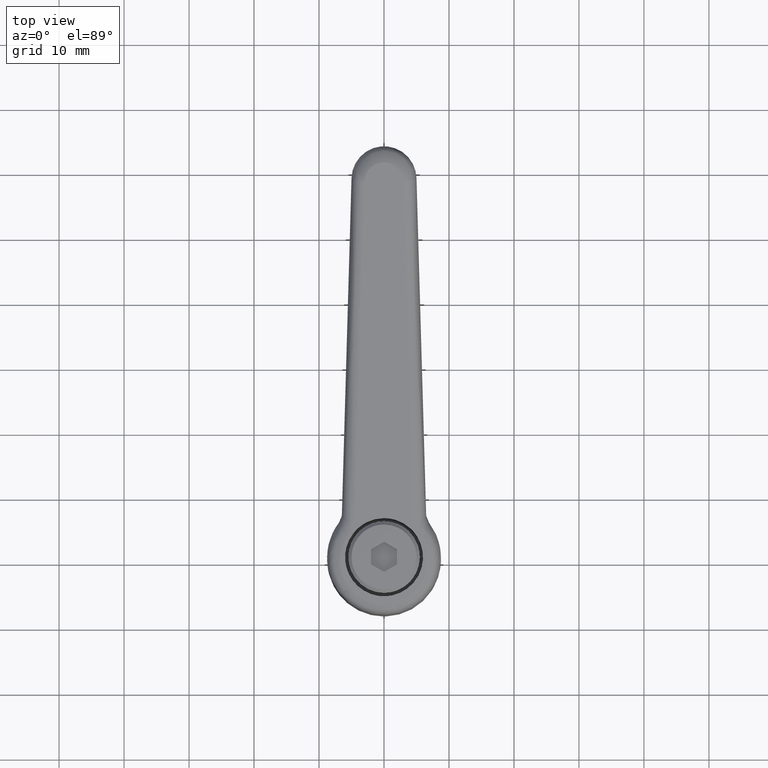
[diagram: clean part render]
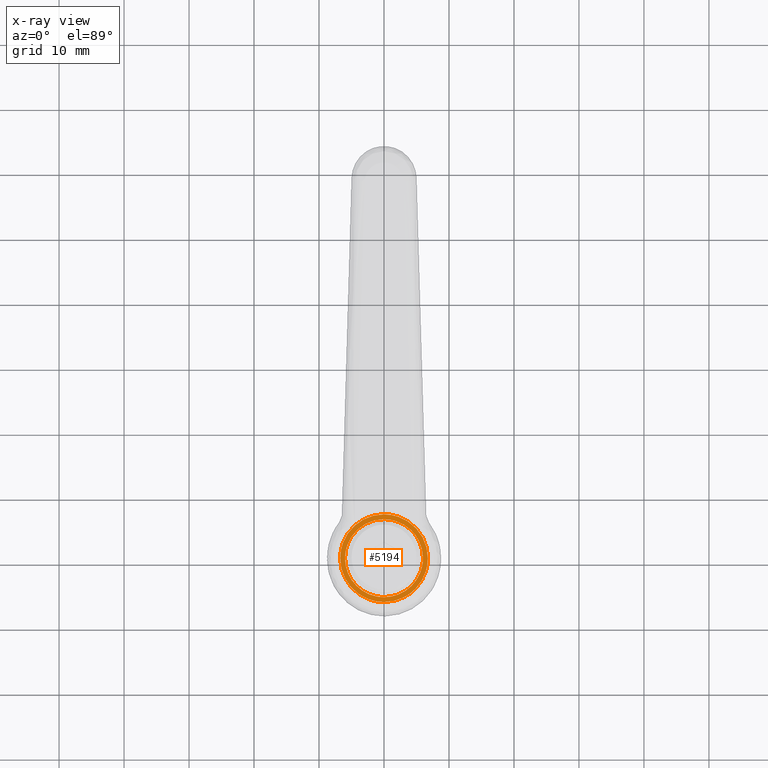
[diagram: x-ray — body ghosted, one internal face saturated and labeled with its STEP entity id]
A machine part, top view, then the same camera in x-ray: the body is ghosted and one INTERNAL B-rep face — a face not visible from any outside direction — is saturated and labeled: STEP entity #5194.
In plain terms, the highlighted face is a freeform B-spline surface patch.
Its self-contained STEP definition (entity closure, byte-faithful):
#1594=CARTESIAN_POINT('',(-6.750000000000000,0.0,20.0));
#1595=VERTEX_POINT('',#1594);
#1596=CARTESIAN_POINT('',(-4.707665820023351,-4.837393887988043,19.999999999999769));
#1597=VERTEX_POINT('',#1596);
#1598=CARTESIAN_POINT('',(-6.750000000000000,0.0,20.0));
#1599=CARTESIAN_POINT('',(-6.750086390662900,-0.477528701971041,20.000000000000028));
#1600=CARTESIAN_POINT('',(-6.663169365717394,-1.292087345393747,19.999999999999851));
#1601=CARTESIAN_POINT('',(-6.328114091911209,-2.426717338787162,19.999999999999911));
#1602=CARTESIAN_POINT('',(-5.760171167212270,-3.623352699578233,19.999999999999819));
#1603=CARTESIAN_POINT('',(-5.150707076095486,-4.406540491042587,19.999999999999819));
#1604=CARTESIAN_POINT('',(-4.707665820023351,-4.837393887988043,19.999999999999769));
#1605=B_SPLINE_CURVE_WITH_KNOTS('',3,(#1598,#1599,#1600,#1601,#1602,#1603,#1604),.UNSPECIFIED.,.F.,.U.,(4,1,1,1,4),(0.000000014046107,1.432571036829972,2.443809775522127,3.539287247505515,5.393206961415920),.UNSPECIFIED.);
#1606=EDGE_CURVE('',#1595,#1597,#1605,.T.);
#1671=CARTESIAN_POINT('',(4.560234069439749,-4.976622159798215,20.000000000001020));
#1672=VERTEX_POINT('',#1671);
#1678=CARTESIAN_POINT('',(6.750000000000000,0.0,20.0));
#1679=VERTEX_POINT('',#1678);
#1680=CARTESIAN_POINT('',(4.560234069439749,-4.976622159798215,20.000000000001020));
#1681=CARTESIAN_POINT('',(4.839606399105284,-4.720668696297840,20.000000000000970));
#1682=CARTESIAN_POINT('',(5.335227976562021,-4.183031608655925,20.000000000000870));
#1683=CARTESIAN_POINT('',(5.962844432490847,-3.231211396296245,20.000000000000700));
#1684=CARTESIAN_POINT('',(6.410737989250696,-2.213295516267105,20.000000000000451));
#1685=CARTESIAN_POINT('',(6.688487422473674,-1.107528633881775,20.000000000000231));
#1686=CARTESIAN_POINT('',(6.750030075511417,-0.378893528700279,20.000000000000082));
#1687=CARTESIAN_POINT('',(6.750000000000000,0.0,20.0));
#1688=B_SPLINE_CURVE_WITH_KNOTS('',3,(#1680,#1681,#1682,#1683,#1684,#1685,#1686,#1687),.UNSPECIFIED.,.F.,.U.,(4,1,1,1,1,4),(0.000000012906852,1.136685204855668,2.185947262679422,3.410053926547014,4.459315781137755,5.596001092864931),.UNSPECIFIED.);
#1689=EDGE_CURVE('',#1672,#1679,#1688,.T.);
#1691=CARTESIAN_POINT('',(-0.000000859410744,6.749999999999945,20.0));
#1692=VERTEX_POINT('',#1691);
#1693=CARTESIAN_POINT('',(6.750000000000000,0.0,20.0));
#1694=CARTESIAN_POINT('',(6.750000599956806,0.303719599288953,19.999999999999989));
#1695=CARTESIAN_POINT('',(6.697774816066874,1.076851167148476,20.000000000000021));
#1696=CARTESIAN_POINT('',(6.382044546012630,2.371504471582557,20.000000000000011));
#1697=CARTESIAN_POINT('',(5.706570773123779,3.713386726689055,19.999999999999918));
#1698=CARTESIAN_POINT('',(4.819316222056413,4.780922744641327,20.000000000000099));
#1699=CARTESIAN_POINT('',(3.775440927585680,5.648434628955928,19.999999999999918));
#1700=CARTESIAN_POINT('',(2.578084883036020,6.297965495118131,20.000000000000039));
#1701=CARTESIAN_POINT('',(1.242523131419660,6.676313830642905,19.999999999999989));
#1702=CARTESIAN_POINT('',(0.386559360959357,6.750017798658464,20.000000000000021));
#1703=CARTESIAN_POINT('',(-0.000000859410744,6.749999999999945,20.0));
#1704=B_SPLINE_CURVE_WITH_KNOTS('',3,(#1693,#1694,#1695,#1696,#1697,#1698,#1699,#1700,#1701,#1702,#1703),.UNSPECIFIED.,.F.,.U.,(4,1,1,1,1,1,1,1,4),(0.000000054603358,0.911171058020097,2.319389311127884,3.976119505188041,5.384291109044759,6.461163638975438,8.035042639962818,9.443249713197075,10.602942218789391),.UNSPECIFIED.);
#1705=EDGE_CURVE('',#1679,#1692,#1704,.T.);
#1707=CARTESIAN_POINT('',(-0.000000859410744,6.749999999999945,20.0));
#1708=CARTESIAN_POINT('',(-0.662726507479431,6.750313739690538,20.000000000000011));
#1709=CARTESIAN_POINT('',(-1.518510687680812,6.622938896930343,20.000000000000028));
#1710=CARTESIAN_POINT('',(-2.718117670833373,6.201936839382194,19.999999999999961));
#1711=CARTESIAN_POINT('',(-3.532918899465068,5.785530128736920,19.999999999999940));
#1712=CARTESIAN_POINT('',(-4.470739667782990,5.098854142067317,20.000000000000149));
#1713=CARTESIAN_POINT('',(-5.362131427760712,4.185470049452402,19.999999999999851));
#1714=CARTESIAN_POINT('',(-6.054341460362989,3.077314363254256,20.000000000000131));
#1715=CARTESIAN_POINT('',(-6.602354582088979,1.656529922117640,19.999999999999929));
#1716=CARTESIAN_POINT('',(-6.750308066742994,0.662725960060322,20.000000000000071));
#1717=CARTESIAN_POINT('',(-6.750000000000000,0.0,20.0));
#1718=B_SPLINE_CURVE_WITH_KNOTS('',3,(#1707,#1708,#1709,#1710,#1711,#1712,#1713,#1714,#1715,#1716,#1717),.UNSPECIFIED.,.F.,.U.,(4,1,1,1,1,1,1,1,4),(0.000000054901006,1.988044966413110,2.567899688458144,3.810446219157967,4.721625328263571,6.046969241069500,7.620859843928216,8.614897722541816,10.602941250027129),.UNSPECIFIED.);
#1719=EDGE_CURVE('',#1692,#1595,#1718,.T.);
#1738=CARTESIAN_POINT('',(0.000000859410688,-6.749999999999945,20.0));
#1739=VERTEX_POINT('',#1738);
#1740=CARTESIAN_POINT('',(-4.707665820023351,-4.837393887988043,19.999999999999769));
#1741=CARTESIAN_POINT('',(-4.377133316945228,-5.159157739999656,19.999999999999801));
#1742=CARTESIAN_POINT('',(-3.842275651779610,-5.582143551968589,19.999999999999801));
#1743=CARTESIAN_POINT('',(-2.922102314762232,-6.107255630211933,19.999999999999890));
#1744=CARTESIAN_POINT('',(-2.165264972467285,-6.414733106123814,19.999999999999918));
#1745=CARTESIAN_POINT('',(-1.139595827039136,-6.680179462896150,19.999999999999812));
#1746=CARTESIAN_POINT('',(-0.461283005729352,-6.750066465347471,20.000000000000121));
#1747=CARTESIAN_POINT('',(0.000000859410688,-6.749999999999945,20.0));
#1748=B_SPLINE_CURVE_WITH_KNOTS('',3,(#1740,#1741,#1742,#1743,#1744,#1745,#1746,#1747),.UNSPECIFIED.,.F.,.U.,(4,1,1,1,1,4),(0.000000014802408,1.383837072062392,2.035055755692155,3.174679782523663,3.825898466138868,5.209735523407318),.UNSPECIFIED.);
#1749=EDGE_CURVE('',#1597,#1739,#1748,.T.);
#1751=CARTESIAN_POINT('',(0.000000859410688,-6.749999999999945,20.0));
#1752=CARTESIAN_POINT('',(0.391168022466558,-6.750035736223921,20.000000000000089));
#1753=CARTESIAN_POINT('',(1.095253823752522,-6.688618546620677,20.000000000000259));
#1754=CARTESIAN_POINT('',(2.033952924876333,-6.455520799811508,20.000000000000458));
#1755=CARTESIAN_POINT('',(2.910399435682856,-6.114706469578630,20.000000000000689));
#1756=CARTESIAN_POINT('',(3.755271136227227,-5.642148608683607,20.000000000000750));
#1757=CARTESIAN_POINT('',(4.310302381896475,-5.205667888573357,20.000000000001101));
#1758=CARTESIAN_POINT('',(4.560234069439749,-4.976622159798215,20.000000000001020));
#1759=B_SPLINE_CURVE_WITH_KNOTS('',3,(#1751,#1752,#1753,#1754,#1755,#1756,#1757,#1758),.UNSPECIFIED.,.F.,.U.,(4,1,1,1,1,4),(0.000000014766859,1.173501244266148,2.112306057225724,2.894634523593584,3.989908776320252,5.006940566065000),.UNSPECIFIED.);
#1760=EDGE_CURVE('',#1739,#1672,#1759,.T.);
#1815=CARTESIAN_POINT('',(0.000000914096678,-5.999999999999930,20.0));
#1816=VERTEX_POINT('',#1815);
#1817=CARTESIAN_POINT('',(4.299905996833539,-4.184592113894977,20.0));
#1818=VERTEX_POINT('',#1817);
#1819=CARTESIAN_POINT('',(0.000000914096678,-5.999999999999930,20.0));
#1820=CARTESIAN_POINT('',(0.524358224623213,-6.000173855678395,19.999999999999989));
#1821=CARTESIAN_POINT('',(1.348215949343070,-5.891266008882675,20.000000000000060));
#1822=CARTESIAN_POINT('',(2.364270380253929,-5.535131818393822,19.999999999999961));
#1823=CARTESIAN_POINT('',(3.321253489204239,-5.043791961105516,20.000000000000089));
#1824=CARTESIAN_POINT('',(3.934313388652013,-4.560478977163506,19.999999999999890));
#1825=CARTESIAN_POINT('',(4.299905996833539,-4.184592113894977,20.0));
#1826=B_SPLINE_CURVE_WITH_KNOTS('',3,(#1819,#1820,#1821,#1822,#1823,#1824,#1825),.UNSPECIFIED.,.F.,.U.,(4,1,1,1,4),(0.000000018968600,1.573019635213427,2.471876165616021,3.220941406599553,4.793961022840614),.UNSPECIFIED.);
#1827=EDGE_CURVE('',#1816,#1818,#1826,.T.);
#1829=CARTESIAN_POINT('',(-6.0,0.0,20.0));
#1830=VERTEX_POINT('',#1829);
#1831=CARTESIAN_POINT('',(-6.0,0.0,20.0));
#1832=CARTESIAN_POINT('',(-6.000275828688879,-0.613613974463418,20.000000000000011));
#1833=CARTESIAN_POINT('',(-5.832884498194198,-1.693387856326333,20.000000000000011));
#1834=CARTESIAN_POINT('',(-5.274404987018185,-2.932442656324553,20.0));
#1835=CARTESIAN_POINT('',(-4.656538549014261,-3.821159307301229,20.000000000000071));
#1836=CARTESIAN_POINT('',(-3.909207084518603,-4.606253597446091,19.999999999999851));
#1837=CARTESIAN_POINT('',(-2.975873061332636,-5.255056919689707,20.000000000000110));
#1838=CARTESIAN_POINT('',(-2.072998282267953,-5.648544365341371,20.0));
#1839=CARTESIAN_POINT('',(-1.128961664985509,-5.922339815579405,20.000000000000028));
#1840=CARTESIAN_POINT('',(-0.466338564269826,-6.000103598494607,19.999999999999979));
#1841=CARTESIAN_POINT('',(0.000000914096678,-5.999999999999930,20.0));
#1842=B_SPLINE_CURVE_WITH_KNOTS('',3,(#1831,#1832,#1833,#1834,#1835,#1836,#1837,#1838,#1839,#1840,#1841),.UNSPECIFIED.,.F.,.U.,(4,1,1,1,1,1,1,1,4),(0.000000067698906,1.840785932542810,3.239792306785292,4.049756111690768,5.080569469217930,6.479570162393193,7.436791589446305,8.025849190768057,9.424837612455836),.UNSPECIFIED.);
#1843=EDGE_CURVE('',#1830,#1816,#1842,.T.);
#1845=CARTESIAN_POINT('',(-0.000000914096605,5.999999999999931,20.0));
#1846=VERTEX_POINT('',#1845);
#1847=CARTESIAN_POINT('',(-0.000000914096605,5.999999999999931,20.0));
#1848=CARTESIAN_POINT('',(-0.466334761149129,6.000098392279675,20.000000000000011));
#1849=CARTESIAN_POINT('',(-1.300780031512712,5.902213547830920,19.999999999999972));
#1850=CARTESIAN_POINT('',(-2.491940964577466,5.500587361802218,20.000000000000039));
#1851=CARTESIAN_POINT('',(-3.518989882399044,4.910459544486908,19.999999999999918));
#1852=CARTESIAN_POINT('',(-4.350338721253145,4.175267855001076,20.000000000000210));
#1853=CARTESIAN_POINT('',(-5.057767481718837,3.291429880265358,19.999999999999591));
#1854=CARTESIAN_POINT('',(-5.511738498430055,2.442099336380191,20.000000000000320));
#1855=CARTESIAN_POINT('',(-5.896561925755443,1.300726484988467,19.999999999999709));
#1856=CARTESIAN_POINT('',(-6.000206761949779,0.539985262224863,19.999999999999719));
#1857=CARTESIAN_POINT('',(-6.0,0.0,20.0));
#1858=B_SPLINE_CURVE_WITH_KNOTS('',3,(#1847,#1848,#1849,#1850,#1851,#1852,#1853,#1854,#1855,#1856,#1857),.UNSPECIFIED.,.F.,.U.,(4,1,1,1,1,1,1,1,4),(0.000000068015876,1.398991795524771,2.503472515935433,3.755229330422151,4.933282455299461,5.816885796940975,7.142260087809101,7.804953529274568,9.424836582049434),.UNSPECIFIED.);
#1859=EDGE_CURVE('',#1846,#1830,#1858,.T.);
#1861=CARTESIAN_POINT('',(4.423663888944148,4.053541052684300,20.0));
#1862=VERTEX_POINT('',#1861);
#1863=CARTESIAN_POINT('',(4.423663888944148,4.053541052684300,20.0));
#1864=CARTESIAN_POINT('',(4.056234779077514,4.454810789344857,19.999999999999979));
#1865=CARTESIAN_POINT('',(3.432465663227703,4.972387887610418,20.000000000000050));
#1866=CARTESIAN_POINT('',(2.311358697660080,5.573632370755822,19.999999999999961));
#1867=CARTESIAN_POINT('',(1.243551072646473,5.916702553814775,20.000000000000110));
#1868=CARTESIAN_POINT('',(0.388605872120000,6.000037508301147,19.999999999999901));
#1869=CARTESIAN_POINT('',(-0.000000914096605,5.999999999999931,20.0));
#1870=B_SPLINE_CURVE_WITH_KNOTS('',3,(#1863,#1864,#1865,#1866,#1867,#1868,#1869),.UNSPECIFIED.,.F.,.U.,(4,1,1,1,4),(0.000000018735008,1.632171924051736,2.409398654990067,3.808391438971429,4.974224015977739),.UNSPECIFIED.);
#1871=EDGE_CURVE('',#1862,#1846,#1870,.T.);
#1936=CARTESIAN_POINT('',(6.0,0.0,20.0));
#1937=VERTEX_POINT('',#1936);
#1938=CARTESIAN_POINT('',(4.299905996833539,-4.184592113894977,20.0));
#1939=CARTESIAN_POINT('',(4.602754136875995,-3.873514554746282,19.999999999999989));
#1940=CARTESIAN_POINT('',(5.035829066987961,-3.319026018569437,20.000000000000011));
#1941=CARTESIAN_POINT('',(5.557604602239763,-2.337121749821315,20.000000000000050));
#1942=CARTESIAN_POINT('',(5.907978383016394,-1.278280357379907,19.999999999999879));
#1943=CARTESIAN_POINT('',(6.000074956764411,-0.434148003237727,20.000000000000039));
#1944=CARTESIAN_POINT('',(6.0,0.0,20.0));
#1945=B_SPLINE_CURVE_WITH_KNOTS('',3,(#1938,#1939,#1940,#1941,#1942,#1943,#1944),.UNSPECIFIED.,.F.,.U.,(4,1,1,1,4),(0.000000019017366,1.302434287617070,2.098378090836067,3.328441124157092,4.630875392756360),.UNSPECIFIED.);
#1946=EDGE_CURVE('',#1818,#1937,#1945,.T.);
#1978=CARTESIAN_POINT('',(6.0,0.0,20.0));
#1979=CARTESIAN_POINT('',(6.000051499415214,0.394066776074032,20.000000000000011));
#1980=CARTESIAN_POINT('',(5.924372053301851,1.158989009287213,19.999999999999989));
#1981=CARTESIAN_POINT('',(5.611769935456445,2.207541219417357,20.0));
#1982=CARTESIAN_POINT('',(5.122964093551770,3.185216583763146,19.999999999999961));
#1983=CARTESIAN_POINT('',(4.689927626716800,3.763039643115969,20.000000000000039));
#1984=CARTESIAN_POINT('',(4.423663888944148,4.053541052684300,20.0));
#1985=B_SPLINE_CURVE_WITH_KNOTS('',3,(#1978,#1979,#1980,#1981,#1982,#1983,#1984),.UNSPECIFIED.,.F.,.U.,(4,1,1,1,4),(0.000000018313435,1.182195071209193,2.294836387442675,3.268419311120127,4.450614364005950),.UNSPECIFIED.);
#1986=EDGE_CURVE('',#1937,#1862,#1985,.T.);
#5173=CARTESIAN_POINT('',(-7.424324973834381,7.424324973834320,20.0));
#5174=CARTESIAN_POINT('',(7.424325335932597,7.424324973834320,20.0));
#5175=CARTESIAN_POINT('',(-7.424324973834381,-7.424325335932537,20.0));
#5176=CARTESIAN_POINT('',(7.424325335932597,-7.424325335932537,20.0));
#5177=B_SPLINE_SURFACE_WITH_KNOTS('',1,1,((#5173,#5175),(#5174,#5176)),.UNSPECIFIED.,.F.,.F.,.U.,(2,2),(2,2),(0.0,14.848650309766979),(0.0,14.848650309766860),.UNSPECIFIED.);
#5178=ORIENTED_EDGE('',*,*,#1719,.F.);
#5179=ORIENTED_EDGE('',*,*,#1705,.F.);
#5180=ORIENTED_EDGE('',*,*,#1689,.F.);
#5181=ORIENTED_EDGE('',*,*,#1760,.F.);
#5182=ORIENTED_EDGE('',*,*,#1749,.F.);
#5183=ORIENTED_EDGE('',*,*,#1606,.F.);
#5184=EDGE_LOOP('',(#5178,#5179,#5180,#5181,#5182,#5183));
#5185=FACE_OUTER_BOUND('',#5184,.T.);
#5186=ORIENTED_EDGE('',*,*,#1843,.T.);
#5187=ORIENTED_EDGE('',*,*,#1827,.T.);
#5188=ORIENTED_EDGE('',*,*,#1946,.T.);
#5189=ORIENTED_EDGE('',*,*,#1986,.T.);
#5190=ORIENTED_EDGE('',*,*,#1871,.T.);
#5191=ORIENTED_EDGE('',*,*,#1859,.T.);
#5192=EDGE_LOOP('',(#5186,#5187,#5188,#5189,#5190,#5191));
#5193=FACE_BOUND('',#5192,.T.);
#5194=ADVANCED_FACE('',(#5185,#5193),#5177,.T.);